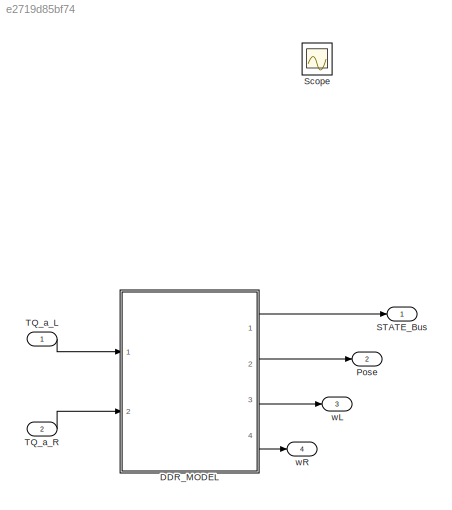
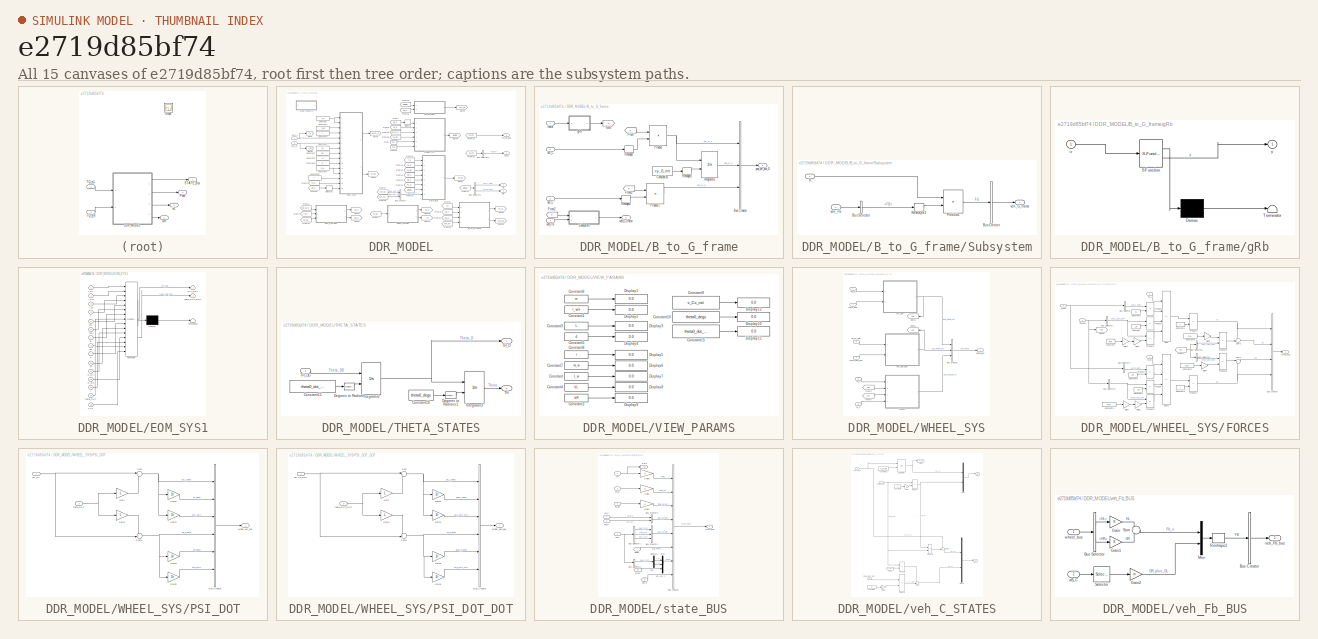
[diagram: thumbnail index - all 15 canvases of the model, root first then tree order]
MODEL slx_e2719d85bf74
KIND model
CONFIG AbsTol = auto
CONFIG EnableMultiTasking = on
CONFIG FixedStep = auto
CONFIG MaxStep = auto
CONFIG MinStep = auto
CONFIG RelTol = 1e-5
CONFIG SampleTimeConstraint = Unconstrained
CONFIG SolverName = ode45
CONFIG StartTime = 0.0
CONFIG StopTime = 120
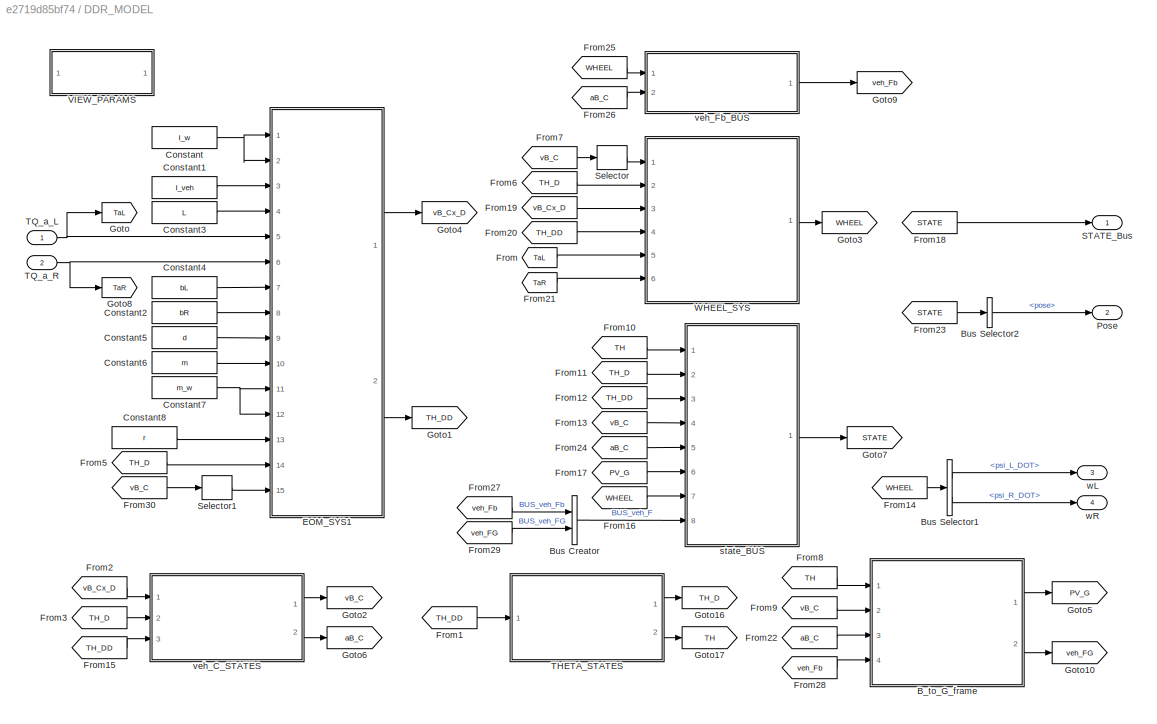
BLOCK [SubSystem] DDR_MODEL
  Ports = [2, 4]
  RequestExecContextInheritance = off
BLOCK [SubSystem] DDR_MODEL/B_to_G_frame
  Ports = [4, 2]
  RequestExecContextInheritance = off
BLOCK [BusCreator] DDR_MODEL/B_to_G_frame/Bus Creator
  DisplayOption = bar
  InheritFromInputs = on
  Inputs = 3
  Ports = [3, 1]
BLOCK [Constant] DDR_MODEL/B_to_G_frame/Constant16
  Value = xy_G_init
BLOCK [From] DDR_MODEL/B_to_G_frame/From
  GotoTag = R
BLOCK [From] DDR_MODEL/B_to_G_frame/From1
  GotoTag = R
BLOCK [From] DDR_MODEL/B_to_G_frame/From2
  GotoTag = R
BLOCK [Goto] DDR_MODEL/B_to_G_frame/Goto
  GotoTag = R
BLOCK [Integrator] DDR_MODEL/B_to_G_frame/Integrator2
  InitialConditionSource = external
  Ports = [2, 1]
BLOCK [Product] DDR_MODEL/B_to_G_frame/Product
  Multiplication = Matrix(*)
  Ports = [2, 1]
BLOCK [Product] DDR_MODEL/B_to_G_frame/Product1
  Multiplication = Matrix(*)
  Ports = [2, 1]
BLOCK [Reshape] DDR_MODEL/B_to_G_frame/Reshape
  Ports = [1, 1]
BLOCK [Reshape] DDR_MODEL/B_to_G_frame/Reshape1
  Ports = [1, 1]
BLOCK [Reshape] DDR_MODEL/B_to_G_frame/Reshape2
  Ports = [1, 1]
BLOCK [SubSystem] DDR_MODEL/B_to_G_frame/Subsystem
  Ports = [2, 1]
  RequestExecContextInheritance = off
BLOCK [BusCreator] DDR_MODEL/B_to_G_frame/Subsystem/Bus Creator
  DisplayOption = bar
  InheritFromInputs = on
  Inputs = 1
  Ports = [1, 1]
BLOCK [BusSelector] DDR_MODEL/B_to_G_frame/Subsystem/Bus Selector
  OutputSignals = FB
  Ports = [1, 1]
BLOCK [Product] DDR_MODEL/B_to_G_frame/Subsystem/Product1
  Multiplication = Matrix(*)
  Ports = [2, 1]
BLOCK [Inport] DDR_MODEL/B_to_G_frame/Subsystem/R
BLOCK [Reshape] DDR_MODEL/B_to_G_frame/Subsystem/Reshape2
  Ports = [1, 1]
BLOCK [Inport] DDR_MODEL/B_to_G_frame/Subsystem/veh_Fb
  Port = 2
BLOCK [Outport] DDR_MODEL/B_to_G_frame/Subsystem/veh_G_frame
BLOCK [Inport] DDR_MODEL/B_to_G_frame/aB_C
  NameLocation = top
  Port = 3
BLOCK [SubSystem] DDR_MODEL/B_to_G_frame/gRb
  ErrorFcn = Stateflow.Translate.translate
  PermitHierarchicalResolution = ExplicitOnly
  Ports = [1, 1]
  RequestExecContextInheritance = off
  SFBlockType = MATLAB Function
  TreatAsAtomicUnit = on
BLOCK [Demux] DDR_MODEL/B_to_G_frame/gRb/ Demux 
  Outputs = 1
  Ports = [1, 1]
BLOCK [S-Function] DDR_MODEL/B_to_G_frame/gRb/ SFunction 
  EnableBusSupport = on
  FunctionName = sf_sfun
  PortCounts = [1 2]
  Ports = [1, 2]
  SFcnIsStateOwnerBlock = off
  SFunctionDeploymentMode = off
  Tag = Stateflow S-Function 4
BLOCK [Terminator] DDR_MODEL/B_to_G_frame/gRb/ Terminator 
BLOCK [Inport] DDR_MODEL/B_to_G_frame/gRb/u
BLOCK [Outport] DDR_MODEL/B_to_G_frame/gRb/y
BLOCK [Outport] DDR_MODEL/B_to_G_frame/pos_vel_acc_G
  NameLocation = top
BLOCK [Inport] DDR_MODEL/B_to_G_frame/theta
BLOCK [Inport] DDR_MODEL/B_to_G_frame/vB_C
  NameLocation = top
  Port = 2
BLOCK [Inport] DDR_MODEL/B_to_G_frame/veh_Fb
  Port = 4
BLOCK [Outport] DDR_MODEL/B_to_G_frame/veh_G_frame
  Port = 2
BLOCK [BusCreator] DDR_MODEL/Bus Creator
  DisplayOption = bar
  InheritFromInputs = on
  Inputs = 2
  Ports = [2, 1]
BLOCK [BusSelector] DDR_MODEL/Bus Selector1
  OutputSignals = BUS_wheel_vel.psi_L_DOT,BUS_wheel_vel.psi_R_DOT
  Ports = [1, 2]
BLOCK [BusSelector] DDR_MODEL/Bus Selector2
  OutputSignals = pose
  Ports = [1, 1]
BLOCK [Constant] DDR_MODEL/Constant
  Value = I_w
BLOCK [Constant] DDR_MODEL/Constant1
  Value = I_veh
BLOCK [Constant] DDR_MODEL/Constant2
  Value = bR
BLOCK [Constant] DDR_MODEL/Constant3
  Value = L
BLOCK [Constant] DDR_MODEL/Constant4
  Value = bL
BLOCK [Constant] DDR_MODEL/Constant5
  Value = d
BLOCK [Constant] DDR_MODEL/Constant6
  Value = m
BLOCK [Constant] DDR_MODEL/Constant7
  Value = m_w
BLOCK [Constant] DDR_MODEL/Constant8
  Value = r
BLOCK [SubSystem] DDR_MODEL/EOM_SYS1
  ErrorFcn = Stateflow.Translate.translate
  PermitHierarchicalResolution = ExplicitOnly
  Ports = [15, 2]
  RequestExecContextInheritance = off
  SFBlockType = MATLAB Function
  TreatAsAtomicUnit = on
BLOCK [Demux] DDR_MODEL/EOM_SYS1/ Demux 
  Outputs = 1
  Ports = [1, 1]
BLOCK [S-Function] DDR_MODEL/EOM_SYS1/ SFunction 
  EnableBusSupport = on
  FunctionName = sf_sfun
  PortCounts = [15 3]
  Ports = [15, 3]
  SFcnIsStateOwnerBlock = off
  SFunctionDeploymentMode = off
  Tag = Stateflow S-Function 2
BLOCK [Terminator] DDR_MODEL/EOM_SYS1/ Terminator 
BLOCK [Inport] DDR_MODEL/EOM_SYS1/I_wL
BLOCK [Inport] DDR_MODEL/EOM_SYS1/I_wR
  Port = 2
BLOCK [Inport] DDR_MODEL/EOM_SYS1/I_zz
  Port = 3
BLOCK [Inport] DDR_MODEL/EOM_SYS1/L
  Port = 4
BLOCK [Inport] DDR_MODEL/EOM_SYS1/TaL
  Port = 5
BLOCK [Inport] DDR_MODEL/EOM_SYS1/TaR
  Port = 6
BLOCK [Inport] DDR_MODEL/EOM_SYS1/bL
  Port = 7
BLOCK [Inport] DDR_MODEL/EOM_SYS1/bR
  Port = 8
BLOCK [Inport] DDR_MODEL/EOM_SYS1/d
  Port = 9
BLOCK [Inport] DDR_MODEL/EOM_SYS1/m
  Port = 10
BLOCK [Inport] DDR_MODEL/EOM_SYS1/m_wL
  Port = 11
BLOCK [Inport] DDR_MODEL/EOM_SYS1/m_wR
  Port = 12
BLOCK [Inport] DDR_MODEL/EOM_SYS1/r
  Port = 13
BLOCK [Inport] DDR_MODEL/EOM_SYS1/theta_DOT
  Port = 14
BLOCK [Outport] DDR_MODEL/EOM_SYS1/theta_DOT_DOT
  Port = 2
BLOCK [Outport] DDR_MODEL/EOM_SYS1/vCx_DOT
BLOCK [Inport] DDR_MODEL/EOM_SYS1/v_Cx
  Port = 15
BLOCK [From] DDR_MODEL/From
  GotoTag = TaL
BLOCK [From] DDR_MODEL/From1
  GotoTag = TH_DD
BLOCK [From] DDR_MODEL/From10
  GotoTag = TH
BLOCK [From] DDR_MODEL/From11
  GotoTag = TH_D
BLOCK [From] DDR_MODEL/From12
  GotoTag = TH_DD
BLOCK [From] DDR_MODEL/From13
  GotoTag = vB_C
BLOCK [From] DDR_MODEL/From14
  GotoTag = WHEEL
BLOCK [From] DDR_MODEL/From15
  GotoTag = TH_DD
BLOCK [From] DDR_MODEL/From16
  GotoTag = WHEEL
BLOCK [From] DDR_MODEL/From17
  GotoTag = PV_G
BLOCK [From] DDR_MODEL/From18
  GotoTag = STATE
BLOCK [From] DDR_MODEL/From19
  GotoTag = vB_Cx_D
BLOCK [From] DDR_MODEL/From2
  GotoTag = vB_Cx_D
BLOCK [From] DDR_MODEL/From20
  GotoTag = TH_DD
BLOCK [From] DDR_MODEL/From21
  GotoTag = TaR
BLOCK [From] DDR_MODEL/From22
  GotoTag = aB_C
BLOCK [From] DDR_MODEL/From23
  GotoTag = STATE
BLOCK [From] DDR_MODEL/From24
  GotoTag = aB_C
BLOCK [From] DDR_MODEL/From25
  GotoTag = WHEEL
BLOCK [From] DDR_MODEL/From26
  GotoTag = aB_C
BLOCK [From] DDR_MODEL/From27
  GotoTag = veh_Fb
BLOCK [From] DDR_MODEL/From28
  GotoTag = veh_Fb
BLOCK [From] DDR_MODEL/From29
  GotoTag = veh_FG
BLOCK [From] DDR_MODEL/From3
  GotoTag = TH_D
BLOCK [From] DDR_MODEL/From30
  GotoTag = vB_C
BLOCK [From] DDR_MODEL/From5
  GotoTag = TH_D
BLOCK [From] DDR_MODEL/From6
  GotoTag = TH_D
BLOCK [From] DDR_MODEL/From7
  GotoTag = vB_C
BLOCK [From] DDR_MODEL/From8
  GotoTag = TH
BLOCK [From] DDR_MODEL/From9
  GotoTag = vB_C
BLOCK [Goto] DDR_MODEL/Goto
  GotoTag = TaL
BLOCK [Goto] DDR_MODEL/Goto1
  GotoTag = TH_DD
BLOCK [Goto] DDR_MODEL/Goto10
  GotoTag = veh_FG
BLOCK [Goto] DDR_MODEL/Goto16
  GotoTag = TH_D
BLOCK [Goto] DDR_MODEL/Goto17
  GotoTag = TH
BLOCK [Goto] DDR_MODEL/Goto2
  GotoTag = vB_C
BLOCK [Goto] DDR_MODEL/Goto3
  GotoTag = WHEEL
BLOCK [Goto] DDR_MODEL/Goto4
  GotoTag = vB_Cx_D
BLOCK [Goto] DDR_MODEL/Goto5
  GotoTag = PV_G
BLOCK [Goto] DDR_MODEL/Goto6
  GotoTag = aB_C
BLOCK [Goto] DDR_MODEL/Goto7
  GotoTag = STATE
BLOCK [Goto] DDR_MODEL/Goto8
  GotoTag = TaR
BLOCK [Goto] DDR_MODEL/Goto9
  GotoTag = veh_Fb
BLOCK [Outport] DDR_MODEL/Pose
  Port = 2
BLOCK [Outport] DDR_MODEL/STATE_Bus
BLOCK [Selector] DDR_MODEL/Selector
  IndexOptions = Index vector (dialog)
  Indices = 1
  InputPortWidth = 2
  OutputSizes = 1
  Ports = [1, 1]
BLOCK [Selector] DDR_MODEL/Selector1
  IndexOptions = Index vector (dialog)
  Indices = 1
  InputPortWidth = 2
  OutputSizes = 1
  Ports = [1, 1]
BLOCK [SubSystem] DDR_MODEL/THETA_STATES
  Ports = [1, 2]
  RequestExecContextInheritance = off
BLOCK [Constant] DDR_MODEL/THETA_STATES/Constant15
  Value = theta0_dot_degs_per_sec
BLOCK [Constant] DDR_MODEL/THETA_STATES/Constant16
  Value = theta0_degs
BLOCK [Reference] DDR_MODEL/THETA_STATES/Degrees to Radians  REF=simulink_extras/Transformations/Degrees to
Radians
  Ports = [1, 1]
  SourceBlock = simulink_extras/Transformations/Degrees to\nRadians
  SourceProductBaseCode = SL
  SourceType = DegreesToRadians
BLOCK [Reference] DDR_MODEL/THETA_STATES/Degrees to Radians1  REF=simulink_extras/Transformations/Degrees to
Radians
  Ports = [1, 1]
  SourceBlock = simulink_extras/Transformations/Degrees to\nRadians
  SourceProductBaseCode = SL
  SourceType = DegreesToRadians
BLOCK [Integrator] DDR_MODEL/THETA_STATES/Integrator2
  InitialConditionSource = external
  Ports = [2, 1]
BLOCK [Integrator] DDR_MODEL/THETA_STATES/Integrator3
  InitialConditionSource = external
  Ports = [2, 1]
BLOCK [Outport] DDR_MODEL/THETA_STATES/TH
  Port = 2
BLOCK [Outport] DDR_MODEL/THETA_STATES/TH_D
BLOCK [Inport] DDR_MODEL/THETA_STATES/TH_DD
  NameLocation = top
BLOCK [Inport] DDR_MODEL/TQ_a_L
  NameLocation = top
BLOCK [Inport] DDR_MODEL/TQ_a_R
  Port = 2
BLOCK [SubSystem] DDR_MODEL/VIEW_PARAMS
  Ports = []
  RequestExecContextInheritance = off
BLOCK [Constant] DDR_MODEL/VIEW_PARAMS/Constant
  Value = I_w
BLOCK [Constant] DDR_MODEL/VIEW_PARAMS/Constant1
  Value = I_veh
BLOCK [Constant] DDR_MODEL/VIEW_PARAMS/Constant15
  Value = theta0_dot_degs_per_sec
BLOCK [Constant] DDR_MODEL/VIEW_PARAMS/Constant16
  Value = theta0_degs
BLOCK [Constant] DDR_MODEL/VIEW_PARAMS/Constant2
  Value = bR
BLOCK [Constant] DDR_MODEL/VIEW_PARAMS/Constant3
  Value = L
BLOCK [Constant] DDR_MODEL/VIEW_PARAMS/Constant4
  Value = bL
BLOCK [Constant] DDR_MODEL/VIEW_PARAMS/Constant5
  Value = d
BLOCK [Constant] DDR_MODEL/VIEW_PARAMS/Constant6
  Value = m
BLOCK [Constant] DDR_MODEL/VIEW_PARAMS/Constant7
  Value = m_w
BLOCK [Constant] DDR_MODEL/VIEW_PARAMS/Constant8
  Value = r
BLOCK [Constant] DDR_MODEL/VIEW_PARAMS/Constant9
  Value = v_Cx_init
BLOCK [Display] DDR_MODEL/VIEW_PARAMS/Display1
  Decimation = 1
  Ports = [1]
BLOCK [Display] DDR_MODEL/VIEW_PARAMS/Display10
  Decimation = 1
  Ports = [1]
BLOCK [Display] DDR_MODEL/VIEW_PARAMS/Display11
  Decimation = 1
  Ports = [1]
BLOCK [Display] DDR_MODEL/VIEW_PARAMS/Display12
  Decimation = 1
  Ports = [1]
BLOCK [Display] DDR_MODEL/VIEW_PARAMS/Display2
  Decimation = 1
  Ports = [1]
BLOCK [Display] DDR_MODEL/VIEW_PARAMS/Display3
  Decimation = 1
  Ports = [1]
BLOCK [Display] DDR_MODEL/VIEW_PARAMS/Display4
  Decimation = 1
  Ports = [1]
BLOCK [Display] DDR_MODEL/VIEW_PARAMS/Display5
  Decimation = 1
  Ports = [1]
BLOCK [Display] DDR_MODEL/VIEW_PARAMS/Display6
  Decimation = 1
  Ports = [1]
BLOCK [Display] DDR_MODEL/VIEW_PARAMS/Display7
  Decimation = 1
  Ports = [1]
BLOCK [Display] DDR_MODEL/VIEW_PARAMS/Display8
  Decimation = 1
  Ports = [1]
BLOCK [Display] DDR_MODEL/VIEW_PARAMS/Display9
  Decimation = 1
  Ports = [1]
BLOCK [SubSystem] DDR_MODEL/WHEEL_SYS
  Ports = [6, 1]
  RequestExecContextInheritance = off
BLOCK [BusCreator] DDR_MODEL/WHEEL_SYS/Bus Creator
  DisplayOption = bar
  InheritFromInputs = on
  Inputs = 3
  Ports = [3, 1]
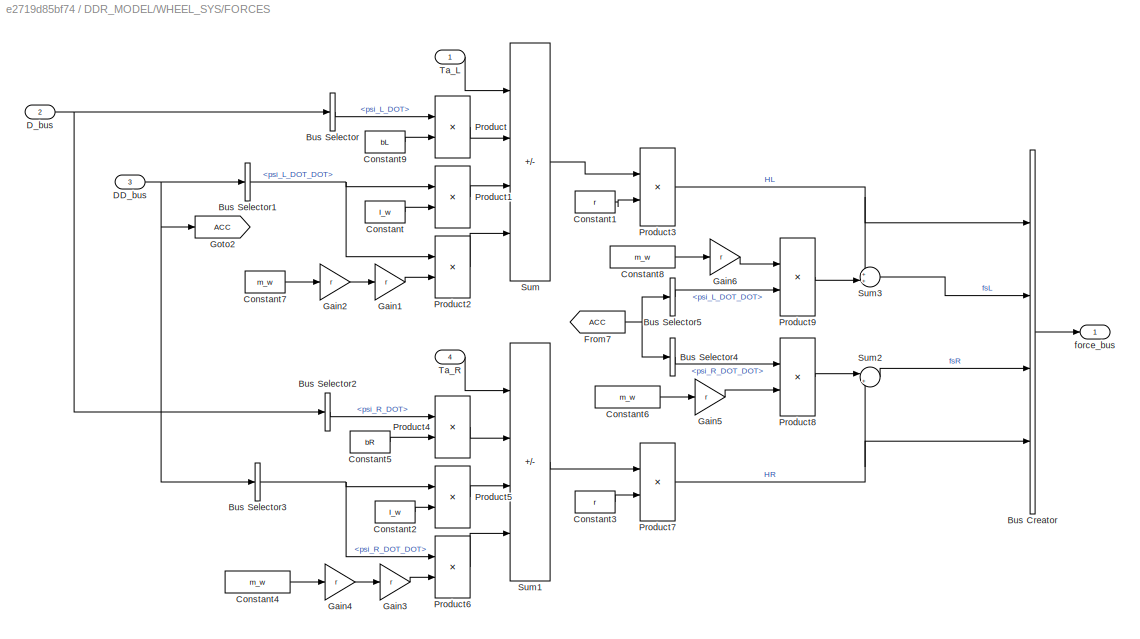
BLOCK [SubSystem] DDR_MODEL/WHEEL_SYS/FORCES
  Ports = [4, 1]
  RequestExecContextInheritance = off
BLOCK [BusCreator] DDR_MODEL/WHEEL_SYS/FORCES/Bus Creator
  DisplayOption = bar
  InheritFromInputs = on
  Inputs = 4
  Ports = [4, 1]
BLOCK [BusSelector] DDR_MODEL/WHEEL_SYS/FORCES/Bus Selector
  OutputSignals = psi_L_DOT
  Ports = [1, 1]
BLOCK [BusSelector] DDR_MODEL/WHEEL_SYS/FORCES/Bus Selector1
  OutputSignals = psi_L_DOT_DOT
  Ports = [1, 1]
BLOCK [BusSelector] DDR_MODEL/WHEEL_SYS/FORCES/Bus Selector2
  OutputSignals = psi_R_DOT
  Ports = [1, 1]
BLOCK [BusSelector] DDR_MODEL/WHEEL_SYS/FORCES/Bus Selector3
  OutputSignals = psi_R_DOT_DOT
  Ports = [1, 1]
BLOCK [BusSelector] DDR_MODEL/WHEEL_SYS/FORCES/Bus Selector4
  OutputSignals = psi_R_DOT_DOT
  Ports = [1, 1]
BLOCK [BusSelector] DDR_MODEL/WHEEL_SYS/FORCES/Bus Selector5
  OutputSignals = psi_L_DOT_DOT
  Ports = [1, 1]
BLOCK [Constant] DDR_MODEL/WHEEL_SYS/FORCES/Constant
  Value = I_w
BLOCK [Constant] DDR_MODEL/WHEEL_SYS/FORCES/Constant1
  Value = r
BLOCK [Constant] DDR_MODEL/WHEEL_SYS/FORCES/Constant2
  Value = I_w
BLOCK [Constant] DDR_MODEL/WHEEL_SYS/FORCES/Constant3
  Value = r
BLOCK [Constant] DDR_MODEL/WHEEL_SYS/FORCES/Constant4
  Value = m_w
BLOCK [Constant] DDR_MODEL/WHEEL_SYS/FORCES/Constant5
  Value = bR
BLOCK [Constant] DDR_MODEL/WHEEL_SYS/FORCES/Constant6
  Value = m_w
BLOCK [Constant] DDR_MODEL/WHEEL_SYS/FORCES/Constant7
  Value = m_w
BLOCK [Constant] DDR_MODEL/WHEEL_SYS/FORCES/Constant8
  Value = m_w
BLOCK [Constant] DDR_MODEL/WHEEL_SYS/FORCES/Constant9
  Value = bL
BLOCK [Inport] DDR_MODEL/WHEEL_SYS/FORCES/DD_bus
  Port = 3
BLOCK [Inport] DDR_MODEL/WHEEL_SYS/FORCES/D_bus
  Port = 2
BLOCK [From] DDR_MODEL/WHEEL_SYS/FORCES/From7
  GotoTag = ACC
BLOCK [Gain] DDR_MODEL/WHEEL_SYS/FORCES/Gain1
  Gain = r
BLOCK [Gain] DDR_MODEL/WHEEL_SYS/FORCES/Gain2
  Gain = r
BLOCK [Gain] DDR_MODEL/WHEEL_SYS/FORCES/Gain3
  Gain = r
BLOCK [Gain] DDR_MODEL/WHEEL_SYS/FORCES/Gain4
  Gain = r
BLOCK [Gain] DDR_MODEL/WHEEL_SYS/FORCES/Gain5
  Gain = r
BLOCK [Gain] DDR_MODEL/WHEEL_SYS/FORCES/Gain6
  Gain = r
BLOCK [Goto] DDR_MODEL/WHEEL_SYS/FORCES/Goto2
  GotoTag = ACC
BLOCK [Product] DDR_MODEL/WHEEL_SYS/FORCES/Product
  Ports = [2, 1]
BLOCK [Product] DDR_MODEL/WHEEL_SYS/FORCES/Product1
  Ports = [2, 1]
BLOCK [Product] DDR_MODEL/WHEEL_SYS/FORCES/Product2
  Ports = [2, 1]
BLOCK [Product] DDR_MODEL/WHEEL_SYS/FORCES/Product3
  Inputs = */
  Ports = [2, 1]
BLOCK [Product] DDR_MODEL/WHEEL_SYS/FORCES/Product4
  Ports = [2, 1]
BLOCK [Product] DDR_MODEL/WHEEL_SYS/FORCES/Product5
  Ports = [2, 1]
BLOCK [Product] DDR_MODEL/WHEEL_SYS/FORCES/Product6
  Ports = [2, 1]
BLOCK [Product] DDR_MODEL/WHEEL_SYS/FORCES/Product7
  Inputs = */
  Ports = [2, 1]
BLOCK [Product] DDR_MODEL/WHEEL_SYS/FORCES/Product8
  Ports = [2, 1]
BLOCK [Product] DDR_MODEL/WHEEL_SYS/FORCES/Product9
  Ports = [2, 1]
BLOCK [Sum] DDR_MODEL/WHEEL_SYS/FORCES/Sum
  IconShape = rectangular
  Inputs = +|-|-|-
  Ports = [4, 1]
BLOCK [Sum] DDR_MODEL/WHEEL_SYS/FORCES/Sum1
  IconShape = rectangular
  Inputs = +|-|-|-
  Ports = [4, 1]
BLOCK [Sum] DDR_MODEL/WHEEL_SYS/FORCES/Sum2
  Inputs = |++
  Ports = [2, 1]
BLOCK [Sum] DDR_MODEL/WHEEL_SYS/FORCES/Sum3
  Inputs = ++|
  Ports = [2, 1]
BLOCK [Inport] DDR_MODEL/WHEEL_SYS/FORCES/Ta_L
  NameLocation = top
BLOCK [Inport] DDR_MODEL/WHEEL_SYS/FORCES/Ta_R
  NameLocation = top
  Port = 4
BLOCK [Outport] DDR_MODEL/WHEEL_SYS/FORCES/force_bus
BLOCK [From] DDR_MODEL/WHEEL_SYS/From3
  GotoTag = VEL
BLOCK [From] DDR_MODEL/WHEEL_SYS/From7
  GotoTag = ACC
BLOCK [Goto] DDR_MODEL/WHEEL_SYS/Goto1
  GotoTag = VEL
  NameLocation = top
BLOCK [Goto] DDR_MODEL/WHEEL_SYS/Goto2
  GotoTag = ACC
  NameLocation = top
BLOCK [SubSystem] DDR_MODEL/WHEEL_SYS/PSI_DOT
  NameLocation = top
  Ports = [2, 1]
  RequestExecContextInheritance = off
BLOCK [BusCreator] DDR_MODEL/WHEEL_SYS/PSI_DOT/Bus Creator
  DisplayOption = bar
  InheritFromInputs = on
  Inputs = 6
  Ports = [6, 1]
BLOCK [Gain] DDR_MODEL/WHEEL_SYS/PSI_DOT/Gain
  Gain = L
BLOCK [Gain] DDR_MODEL/WHEEL_SYS/PSI_DOT/Gain1
  Gain = L
BLOCK [Gain] DDR_MODEL/WHEEL_SYS/PSI_DOT/Gain2
  Gain = 1/r
BLOCK [Gain] DDR_MODEL/WHEEL_SYS/PSI_DOT/Gain3
  Gain = 1/r
BLOCK [Gain] DDR_MODEL/WHEEL_SYS/PSI_DOT/Gain4
  Gain = 1/r
BLOCK [Gain] DDR_MODEL/WHEEL_SYS/PSI_DOT/Gain5
  Gain = 1/r
BLOCK [Sum] DDR_MODEL/WHEEL_SYS/PSI_DOT/Sum
  Inputs = |+-
  Ports = [2, 1]
BLOCK [Sum] DDR_MODEL/WHEEL_SYS/PSI_DOT/Sum1
  Inputs = ++|
  Ports = [2, 1]
BLOCK [Inport] DDR_MODEL/WHEEL_SYS/PSI_DOT/theta_DOT
  Port = 2
BLOCK [Inport] DDR_MODEL/WHEEL_SYS/PSI_DOT/vB_Cx
BLOCK [Outport] DDR_MODEL/WHEEL_SYS/PSI_DOT/wheel_vel_bus
BLOCK [SubSystem] DDR_MODEL/WHEEL_SYS/PSI_DOT_DOT
  Ports = [2, 1]
  RequestExecContextInheritance = off
BLOCK [BusCreator] DDR_MODEL/WHEEL_SYS/PSI_DOT_DOT/Bus Creator
  DisplayOption = bar
  InheritFromInputs = on
  Inputs = 6
  Ports = [6, 1]
BLOCK [Gain] DDR_MODEL/WHEEL_SYS/PSI_DOT_DOT/Gain
  Gain = L
BLOCK [Gain] DDR_MODEL/WHEEL_SYS/PSI_DOT_DOT/Gain1
  Gain = L
BLOCK [Gain] DDR_MODEL/WHEEL_SYS/PSI_DOT_DOT/Gain2
  Gain = 1/r
BLOCK [Gain] DDR_MODEL/WHEEL_SYS/PSI_DOT_DOT/Gain3
  Gain = 1/r
BLOCK [Gain] DDR_MODEL/WHEEL_SYS/PSI_DOT_DOT/Gain4
  Gain = 1/r
BLOCK [Gain] DDR_MODEL/WHEEL_SYS/PSI_DOT_DOT/Gain5
  Gain = 1/r
BLOCK [Sum] DDR_MODEL/WHEEL_SYS/PSI_DOT_DOT/Sum
  Inputs = |+-
  Ports = [2, 1]
BLOCK [Sum] DDR_MODEL/WHEEL_SYS/PSI_DOT_DOT/Sum1
  Inputs = ++|
  Ports = [2, 1]
BLOCK [Inport] DDR_MODEL/WHEEL_SYS/PSI_DOT_DOT/theta_DOT_DOT
  Port = 2
BLOCK [Inport] DDR_MODEL/WHEEL_SYS/PSI_DOT_DOT/vB_Cx_DOT
BLOCK [Outport] DDR_MODEL/WHEEL_SYS/PSI_DOT_DOT/wheel_acc_bus
BLOCK [Inport] DDR_MODEL/WHEEL_SYS/Ta_L
  NameLocation = top
  Port = 5
BLOCK [Inport] DDR_MODEL/WHEEL_SYS/Ta_R
  Port = 6
BLOCK [Inport] DDR_MODEL/WHEEL_SYS/theta_DOT
  Port = 2
BLOCK [Inport] DDR_MODEL/WHEEL_SYS/theta_DOT_DOT
  Port = 4
BLOCK [Inport] DDR_MODEL/WHEEL_SYS/vB_Cx
BLOCK [Inport] DDR_MODEL/WHEEL_SYS/vB_Cx_DOT
  Port = 3
BLOCK [Outport] DDR_MODEL/WHEEL_SYS/wheel_bus
BLOCK [SubSystem] DDR_MODEL/state_BUS
  Ports = [8, 1]
  RequestExecContextInheritance = off
BLOCK [BusCreator] DDR_MODEL/state_BUS/Bus Creator
  DisplayOption = bar
  InheritFromInputs = on
  Inputs = 8
  Ports = [8, 1]
BLOCK [BusCreator] DDR_MODEL/state_BUS/Bus Creator1
  DisplayOption = bar
  InheritFromInputs = on
  Inputs = 3
  Ports = [3, 1]
BLOCK [BusCreator] DDR_MODEL/state_BUS/Bus Creator2
  DisplayOption = bar
  InheritFromInputs = on
  Inputs = 2
  Ports = [2, 1]
BLOCK [BusSelector] DDR_MODEL/state_BUS/Bus Selector1
  OutputSignals = pos_G_C,vel_G_C,acc_G_C
  Ports = [1, 3]
BLOCK [BusSelector] DDR_MODEL/state_BUS/Bus Selector2
  OutputSignals = pos_G_C
  Ports = [1, 1]
BLOCK [Demux] DDR_MODEL/state_BUS/Demux1
  Outputs = 2
  Ports = [1, 2]
BLOCK [From] DDR_MODEL/state_BUS/From
  GotoTag = TH
BLOCK [Gain] DDR_MODEL/state_BUS/Gain1
BLOCK [Gain] DDR_MODEL/state_BUS/Gain2
BLOCK [Gain] DDR_MODEL/state_BUS/Gain6
BLOCK [Goto] DDR_MODEL/state_BUS/Goto
  GotoTag = TH
BLOCK [Mux] DDR_MODEL/state_BUS/Mux
  DisplayOption = bar
  Inputs = 3
  Ports = [3, 1]
BLOCK [Inport] DDR_MODEL/state_BUS/PVG
  Port = 6
BLOCK [Inport] DDR_MODEL/state_BUS/TH
BLOCK [Inport] DDR_MODEL/state_BUS/TH_D
  Port = 2
BLOCK [Inport] DDR_MODEL/state_BUS/TH_DD
  Port = 3
BLOCK [Inport] DDR_MODEL/state_BUS/aB_C
  Port = 5
BLOCK [Outport] DDR_MODEL/state_BUS/state_bus
BLOCK [Inport] DDR_MODEL/state_BUS/vB_C
  NameLocation = top
  Port = 4
BLOCK [Inport] DDR_MODEL/state_BUS/veh_F
  Port = 8
BLOCK [Inport] DDR_MODEL/state_BUS/wheel
  Port = 7
BLOCK [SubSystem] DDR_MODEL/veh_C_STATES
  Ports = [3, 2]
  RequestExecContextInheritance = off
BLOCK [Constant] DDR_MODEL/veh_C_STATES/Constant1
  Value = d
BLOCK [Constant] DDR_MODEL/veh_C_STATES/Constant16
  Value = v_Cx_init
BLOCK [Constant] DDR_MODEL/veh_C_STATES/Constant9
  Value = d
BLOCK [From] DDR_MODEL/veh_C_STATES/From
  GotoTag = v_Cx
BLOCK [Gain] DDR_MODEL/veh_C_STATES/Gain
  Gain = -1
BLOCK [Gain] DDR_MODEL/veh_C_STATES/Gain1
  Gain = -1
BLOCK [Goto] DDR_MODEL/veh_C_STATES/Goto
  GotoTag = v_Cx
BLOCK [Integrator] DDR_MODEL/veh_C_STATES/Integrator2
  InitialConditionSource = external
  Ports = [2, 1]
BLOCK [Mux] DDR_MODEL/veh_C_STATES/Mux
  DisplayOption = bar
  Inputs = 2
  Ports = [2, 1]
BLOCK [Mux] DDR_MODEL/veh_C_STATES/Mux1
  DisplayOption = bar
  Inputs = 2
  Ports = [2, 1]
BLOCK [Product] DDR_MODEL/veh_C_STATES/Product
  Ports = [2, 1]
BLOCK [Product] DDR_MODEL/veh_C_STATES/Product1
  Ports = [2, 1]
BLOCK [Product] DDR_MODEL/veh_C_STATES/Product2
  Ports = [2, 1]
BLOCK [Product] DDR_MODEL/veh_C_STATES/Product3
  Ports = [2, 1]
BLOCK [Sum] DDR_MODEL/veh_C_STATES/Sum1
  Inputs = ++|
  Ports = [2, 1]
BLOCK [Sum] DDR_MODEL/veh_C_STATES/Sum2
  Inputs = +-|
  Ports = [2, 1]
BLOCK [Outport] DDR_MODEL/veh_C_STATES/aB_C
  Port = 2
BLOCK [Inport] DDR_MODEL/veh_C_STATES/theta_DOT
  NameLocation = top
  Port = 2
BLOCK [Inport] DDR_MODEL/veh_C_STATES/theta_DOT_DOT
  NameLocation = top
  Port = 3
BLOCK [Outport] DDR_MODEL/veh_C_STATES/vB_C
BLOCK [Inport] DDR_MODEL/veh_C_STATES/vB_Cx_D
BLOCK [SubSystem] DDR_MODEL/veh_Fb_BUS
  Ports = [2, 1]
  RequestExecContextInheritance = off
BLOCK [BusCreator] DDR_MODEL/veh_Fb_BUS/Bus Creator
  DisplayOption = bar
  InheritFromInputs = on
  Inputs = 1
  Ports = [1, 1]
BLOCK [BusSelector] DDR_MODEL/veh_Fb_BUS/Bus Selector
  OutputSignals = BUS_wheel_force.HL,BUS_wheel_force.HR
  Ports = [1, 2]
BLOCK [Gain] DDR_MODEL/veh_Fb_BUS/Gain
BLOCK [Gain] DDR_MODEL/veh_Fb_BUS/Gain1
BLOCK [Gain] DDR_MODEL/veh_Fb_BUS/Gain2
  Gain = m
BLOCK [Mux] DDR_MODEL/veh_Fb_BUS/Mux
  DisplayOption = bar
  Inputs = 2
  Ports = [2, 1]
BLOCK [Reshape] DDR_MODEL/veh_Fb_BUS/Reshape2
  Ports = [1, 1]
BLOCK [Selector] DDR_MODEL/veh_Fb_BUS/Selector
  IndexOptions = Index vector (dialog)
  Indices = 2
  InputPortWidth = 2
  OutputSizes = 1
  Ports = [1, 1]
BLOCK [Sum] DDR_MODEL/veh_Fb_BUS/Sum
  Inputs = +|+
  Ports = [2, 1]
BLOCK [Inport] DDR_MODEL/veh_Fb_BUS/aB_C
  Port = 2
BLOCK [Outport] DDR_MODEL/veh_Fb_BUS/veh_Fb_bus
BLOCK [Inport] DDR_MODEL/veh_Fb_BUS/wheel_bus
BLOCK [Outport] DDR_MODEL/wL
  NameLocation = top
  Port = 3
BLOCK [Outport] DDR_MODEL/wR
  Port = 4
BLOCK [Outport] Pose
  NameLocation = top
  Port = 2
BLOCK [Outport] STATE_Bus
  NameLocation = top
  OutDataTypeStr = Bus: BUS_DDR_state
BLOCK [Scope] Scope
  Floating = off
  IOType = viewer
  NumInputPorts = 1
  Ports = []
  ScopeSpecificationString = Simulink.scopes.TimeScopeBlockCfg('CurrentConfiguration', extmgr.ConfigurationSet(extmgr.Configuration('Core','General UI',true),extmgr.Configuration('Core','Source UI',true),extmgr.Configuration('Sources','WiredSimulink',true,'DataLoggingVariableName','ScopeData1'),extmgr.Configuration('Visuals','Time Domain',true,'SerializedDisplays',{struct('MinYLimReal','0.07','MaxYLimReal','0.09','YLabelReal'...<+1983ch>
BLOCK [Inport] TQ_a_L
  NameLocation = top
BLOCK [Inport] TQ_a_R
  Port = 2
BLOCK [Outport] wL
  NameLocation = top
  Port = 3
BLOCK [Outport] wR
  NameLocation = top
  Port = 4
ANNOTATION DDR_MODEL/state_BUS: state_BUS
LINE DDR_MODEL/B_to_G_frame/Bus Creator:1 -> DDR_MODEL/B_to_G_frame/pos_vel_acc_G:1
LINE DDR_MODEL/B_to_G_frame/Constant16:1 -> DDR_MODEL/B_to_G_frame/Reshape1:1
LINE DDR_MODEL/B_to_G_frame/From1:1 -> DDR_MODEL/B_to_G_frame/Product1:1
LINE DDR_MODEL/B_to_G_frame/From2:1 -> DDR_MODEL/B_to_G_frame/Subsystem:1
LINE DDR_MODEL/B_to_G_frame/From:1 -> DDR_MODEL/B_to_G_frame/Product:1
LINE DDR_MODEL/B_to_G_frame/Integrator2:1 -> DDR_MODEL/B_to_G_frame/Bus Creator:2
LINE DDR_MODEL/B_to_G_frame/Product1:1 -> DDR_MODEL/B_to_G_frame/Bus Creator:3
NET DDR_MODEL/B_to_G_frame/Product:1 -> DDR_MODEL/B_to_G_frame/Bus Creator:1, DDR_MODEL/B_to_G_frame/Integrator2:1
LINE DDR_MODEL/B_to_G_frame/Reshape1:1 -> DDR_MODEL/B_to_G_frame/Integrator2:2
LINE DDR_MODEL/B_to_G_frame/Reshape2:1 -> DDR_MODEL/B_to_G_frame/Product1:2
LINE DDR_MODEL/B_to_G_frame/Reshape:1 -> DDR_MODEL/B_to_G_frame/Product:2
LINE DDR_MODEL/B_to_G_frame/Subsystem/Bus Creator:1 -> DDR_MODEL/B_to_G_frame/Subsystem/veh_G_frame:1
LINE DDR_MODEL/B_to_G_frame/Subsystem/Bus Selector:1 -> DDR_MODEL/B_to_G_frame/Subsystem/Reshape2:1
LINE DDR_MODEL/B_to_G_frame/Subsystem/Product1:1 -> DDR_MODEL/B_to_G_frame/Subsystem/Bus Creator:1
LINE DDR_MODEL/B_to_G_frame/Subsystem/R:1 -> DDR_MODEL/B_to_G_frame/Subsystem/Product1:1
LINE DDR_MODEL/B_to_G_frame/Subsystem/Reshape2:1 -> DDR_MODEL/B_to_G_frame/Subsystem/Product1:2
LINE DDR_MODEL/B_to_G_frame/Subsystem/veh_Fb:1 -> DDR_MODEL/B_to_G_frame/Subsystem/Bus Selector:1
LINE DDR_MODEL/B_to_G_frame/Subsystem:1 -> DDR_MODEL/B_to_G_frame/veh_G_frame:1
LINE DDR_MODEL/B_to_G_frame/aB_C:1 -> DDR_MODEL/B_to_G_frame/Reshape2:1
LINE DDR_MODEL/B_to_G_frame/gRb:1 -> DDR_MODEL/B_to_G_frame/Goto:1
LINE DDR_MODEL/B_to_G_frame/theta:1 -> DDR_MODEL/B_to_G_frame/gRb:1
LINE DDR_MODEL/B_to_G_frame/vB_C:1 -> DDR_MODEL/B_to_G_frame/Reshape:1
LINE DDR_MODEL/B_to_G_frame/veh_Fb:1 -> DDR_MODEL/B_to_G_frame/Subsystem:2
LINE DDR_MODEL/B_to_G_frame:1 -> DDR_MODEL/Goto5:1
LINE DDR_MODEL/B_to_G_frame:2 -> DDR_MODEL/Goto10:1
LINE DDR_MODEL/Bus Creator:1 -> DDR_MODEL/state_BUS:8
LINE DDR_MODEL/Bus Selector1:1 -> DDR_MODEL/wL:1
LINE DDR_MODEL/Bus Selector1:2 -> DDR_MODEL/wR:1
LINE DDR_MODEL/Bus Selector2:1 -> DDR_MODEL/Pose:1
LINE DDR_MODEL/Constant1:1 -> DDR_MODEL/EOM_SYS1:3
LINE DDR_MODEL/Constant2:1 -> DDR_MODEL/EOM_SYS1:8
LINE DDR_MODEL/Constant3:1 -> DDR_MODEL/EOM_SYS1:4
LINE DDR_MODEL/Constant4:1 -> DDR_MODEL/EOM_SYS1:7
LINE DDR_MODEL/Constant5:1 -> DDR_MODEL/EOM_SYS1:9
LINE DDR_MODEL/Constant6:1 -> DDR_MODEL/EOM_SYS1:10
NET DDR_MODEL/Constant7:1 -> DDR_MODEL/EOM_SYS1:11, DDR_MODEL/EOM_SYS1:12
LINE DDR_MODEL/Constant8:1 -> DDR_MODEL/EOM_SYS1:13
NET DDR_MODEL/Constant:1 -> DDR_MODEL/EOM_SYS1:1, DDR_MODEL/EOM_SYS1:2
LINE DDR_MODEL/EOM_SYS1:1 -> DDR_MODEL/Goto4:1
LINE DDR_MODEL/EOM_SYS1:2 -> DDR_MODEL/Goto1:1
LINE DDR_MODEL/From10:1 -> DDR_MODEL/state_BUS:1
LINE DDR_MODEL/From11:1 -> DDR_MODEL/state_BUS:2
LINE DDR_MODEL/From12:1 -> DDR_MODEL/state_BUS:3
LINE DDR_MODEL/From13:1 -> DDR_MODEL/state_BUS:4
LINE DDR_MODEL/From14:1 -> DDR_MODEL/Bus Selector1:1
LINE DDR_MODEL/From15:1 -> DDR_MODEL/veh_C_STATES:3
LINE DDR_MODEL/From16:1 -> DDR_MODEL/state_BUS:7
LINE DDR_MODEL/From17:1 -> DDR_MODEL/state_BUS:6
LINE DDR_MODEL/From18:1 -> DDR_MODEL/STATE_Bus:1
LINE DDR_MODEL/From19:1 -> DDR_MODEL/WHEEL_SYS:3
LINE DDR_MODEL/From1:1 -> DDR_MODEL/THETA_STATES:1
LINE DDR_MODEL/From20:1 -> DDR_MODEL/WHEEL_SYS:4
LINE DDR_MODEL/From21:1 -> DDR_MODEL/WHEEL_SYS:6
LINE DDR_MODEL/From22:1 -> DDR_MODEL/B_to_G_frame:3
LINE DDR_MODEL/From23:1 -> DDR_MODEL/Bus Selector2:1
LINE DDR_MODEL/From24:1 -> DDR_MODEL/state_BUS:5
LINE DDR_MODEL/From25:1 -> DDR_MODEL/veh_Fb_BUS:1
LINE DDR_MODEL/From26:1 -> DDR_MODEL/veh_Fb_BUS:2
LINE DDR_MODEL/From27:1 -> DDR_MODEL/Bus Creator:1
LINE DDR_MODEL/From28:1 -> DDR_MODEL/B_to_G_frame:4
LINE DDR_MODEL/From29:1 -> DDR_MODEL/Bus Creator:2
LINE DDR_MODEL/From2:1 -> DDR_MODEL/veh_C_STATES:1
LINE DDR_MODEL/From30:1 -> DDR_MODEL/Selector1:1
LINE DDR_MODEL/From3:1 -> DDR_MODEL/veh_C_STATES:2
LINE DDR_MODEL/From5:1 -> DDR_MODEL/EOM_SYS1:14
LINE DDR_MODEL/From6:1 -> DDR_MODEL/WHEEL_SYS:2
LINE DDR_MODEL/From7:1 -> DDR_MODEL/Selector:1
LINE DDR_MODEL/From8:1 -> DDR_MODEL/B_to_G_frame:1
LINE DDR_MODEL/From9:1 -> DDR_MODEL/B_to_G_frame:2
LINE DDR_MODEL/From:1 -> DDR_MODEL/WHEEL_SYS:5
LINE DDR_MODEL/Selector1:1 -> DDR_MODEL/EOM_SYS1:15
LINE DDR_MODEL/Selector:1 -> DDR_MODEL/WHEEL_SYS:1
LINE DDR_MODEL/THETA_STATES/Constant15:1 -> DDR_MODEL/THETA_STATES/Degrees to Radians:1
LINE DDR_MODEL/THETA_STATES/Constant16:1 -> DDR_MODEL/THETA_STATES/Degrees to Radians1:1
LINE DDR_MODEL/THETA_STATES/Degrees to Radians1:1 -> DDR_MODEL/THETA_STATES/Integrator3:2
LINE DDR_MODEL/THETA_STATES/Degrees to Radians:1 -> DDR_MODEL/THETA_STATES/Integrator2:2
NET DDR_MODEL/THETA_STATES/Integrator2:1 -> DDR_MODEL/THETA_STATES/Integrator3:1, DDR_MODEL/THETA_STATES/TH_D:1
LINE DDR_MODEL/THETA_STATES/Integrator3:1 -> DDR_MODEL/THETA_STATES/TH:1
LINE DDR_MODEL/THETA_STATES/TH_DD:1 -> DDR_MODEL/THETA_STATES/Integrator2:1
LINE DDR_MODEL/THETA_STATES:1 -> DDR_MODEL/Goto16:1
LINE DDR_MODEL/THETA_STATES:2 -> DDR_MODEL/Goto17:1
NET DDR_MODEL/TQ_a_L:1 -> DDR_MODEL/EOM_SYS1:5, DDR_MODEL/Goto:1
NET DDR_MODEL/TQ_a_R:1 -> DDR_MODEL/EOM_SYS1:6, DDR_MODEL/Goto8:1
LINE DDR_MODEL/VIEW_PARAMS/Constant15:1 -> DDR_MODEL/VIEW_PARAMS/Display11:1
LINE DDR_MODEL/VIEW_PARAMS/Constant16:1 -> DDR_MODEL/VIEW_PARAMS/Display10:1
LINE DDR_MODEL/VIEW_PARAMS/Constant1:1 -> DDR_MODEL/VIEW_PARAMS/Display2:1
LINE DDR_MODEL/VIEW_PARAMS/Constant2:1 -> DDR_MODEL/VIEW_PARAMS/Display9:1
LINE DDR_MODEL/VIEW_PARAMS/Constant3:1 -> DDR_MODEL/VIEW_PARAMS/Display3:1
LINE DDR_MODEL/VIEW_PARAMS/Constant4:1 -> DDR_MODEL/VIEW_PARAMS/Display8:1
LINE DDR_MODEL/VIEW_PARAMS/Constant5:1 -> DDR_MODEL/VIEW_PARAMS/Display4:1
LINE DDR_MODEL/VIEW_PARAMS/Constant6:1 -> DDR_MODEL/VIEW_PARAMS/Display1:1
LINE DDR_MODEL/VIEW_PARAMS/Constant7:1 -> DDR_MODEL/VIEW_PARAMS/Display6:1
LINE DDR_MODEL/VIEW_PARAMS/Constant8:1 -> DDR_MODEL/VIEW_PARAMS/Display5:1
LINE DDR_MODEL/VIEW_PARAMS/Constant9:1 -> DDR_MODEL/VIEW_PARAMS/Display12:1
LINE DDR_MODEL/VIEW_PARAMS/Constant:1 -> DDR_MODEL/VIEW_PARAMS/Display7:1
LINE DDR_MODEL/WHEEL_SYS/Bus Creator:1 -> DDR_MODEL/WHEEL_SYS/wheel_bus:1
LINE DDR_MODEL/WHEEL_SYS/FORCES/Bus Creator:1 -> DDR_MODEL/WHEEL_SYS/FORCES/force_bus:1
NET DDR_MODEL/WHEEL_SYS/FORCES/Bus Selector1:1 -> DDR_MODEL/WHEEL_SYS/FORCES/Product1:1, DDR_MODEL/WHEEL_SYS/FORCES/Product2:1
LINE DDR_MODEL/WHEEL_SYS/FORCES/Bus Selector2:1 -> DDR_MODEL/WHEEL_SYS/FORCES/Product4:1
NET DDR_MODEL/WHEEL_SYS/FORCES/Bus Selector3:1 -> DDR_MODEL/WHEEL_SYS/FORCES/Product5:1, DDR_MODEL/WHEEL_SYS/FORCES/Product6:1
LINE DDR_MODEL/WHEEL_SYS/FORCES/Bus Selector4:1 -> DDR_MODEL/WHEEL_SYS/FORCES/Product8:1
LINE DDR_MODEL/WHEEL_SYS/FORCES/Bus Selector5:1 -> DDR_MODEL/WHEEL_SYS/FORCES/Product9:2
LINE DDR_MODEL/WHEEL_SYS/FORCES/Bus Selector:1 -> DDR_MODEL/WHEEL_SYS/FORCES/Product:1
LINE DDR_MODEL/WHEEL_SYS/FORCES/Constant1:1 -> DDR_MODEL/WHEEL_SYS/FORCES/Product3:2
LINE DDR_MODEL/WHEEL_SYS/FORCES/Constant2:1 -> DDR_MODEL/WHEEL_SYS/FORCES/Product5:2
LINE DDR_MODEL/WHEEL_SYS/FORCES/Constant3:1 -> DDR_MODEL/WHEEL_SYS/FORCES/Product7:2
LINE DDR_MODEL/WHEEL_SYS/FORCES/Constant4:1 -> DDR_MODEL/WHEEL_SYS/FORCES/Gain4:1
LINE DDR_MODEL/WHEEL_SYS/FORCES/Constant5:1 -> DDR_MODEL/WHEEL_SYS/FORCES/Product4:2
LINE DDR_MODEL/WHEEL_SYS/FORCES/Constant6:1 -> DDR_MODEL/WHEEL_SYS/FORCES/Gain5:1
LINE DDR_MODEL/WHEEL_SYS/FORCES/Constant7:1 -> DDR_MODEL/WHEEL_SYS/FORCES/Gain2:1
LINE DDR_MODEL/WHEEL_SYS/FORCES/Constant8:1 -> DDR_MODEL/WHEEL_SYS/FORCES/Gain6:1
LINE DDR_MODEL/WHEEL_SYS/FORCES/Constant9:1 -> DDR_MODEL/WHEEL_SYS/FORCES/Product:2
LINE DDR_MODEL/WHEEL_SYS/FORCES/Constant:1 -> DDR_MODEL/WHEEL_SYS/FORCES/Product1:2
NET DDR_MODEL/WHEEL_SYS/FORCES/DD_bus:1 -> DDR_MODEL/WHEEL_SYS/FORCES/Bus Selector1:1, DDR_MODEL/WHEEL_SYS/FORCES/Bus Selector3:1, DDR_MODEL/WHEEL_SYS/FORCES/Goto2:1
NET DDR_MODEL/WHEEL_SYS/FORCES/D_bus:1 -> DDR_MODEL/WHEEL_SYS/FORCES/Bus Selector2:1, DDR_MODEL/WHEEL_SYS/FORCES/Bus Selector:1
NET DDR_MODEL/WHEEL_SYS/FORCES/From7:1 -> DDR_MODEL/WHEEL_SYS/FORCES/Bus Selector4:1, DDR_MODEL/WHEEL_SYS/FORCES/Bus Selector5:1
LINE DDR_MODEL/WHEEL_SYS/FORCES/Gain1:1 -> DDR_MODEL/WHEEL_SYS/FORCES/Product2:2
LINE DDR_MODEL/WHEEL_SYS/FORCES/Gain2:1 -> DDR_MODEL/WHEEL_SYS/FORCES/Gain1:1
LINE DDR_MODEL/WHEEL_SYS/FORCES/Gain3:1 -> DDR_MODEL/WHEEL_SYS/FORCES/Product6:2
LINE DDR_MODEL/WHEEL_SYS/FORCES/Gain4:1 -> DDR_MODEL/WHEEL_SYS/FORCES/Gain3:1
LINE DDR_MODEL/WHEEL_SYS/FORCES/Gain5:1 -> DDR_MODEL/WHEEL_SYS/FORCES/Product8:2
LINE DDR_MODEL/WHEEL_SYS/FORCES/Gain6:1 -> DDR_MODEL/WHEEL_SYS/FORCES/Product9:1
LINE DDR_MODEL/WHEEL_SYS/FORCES/Product1:1 -> DDR_MODEL/WHEEL_SYS/FORCES/Sum:3
LINE DDR_MODEL/WHEEL_SYS/FORCES/Product2:1 -> DDR_MODEL/WHEEL_SYS/FORCES/Sum:4
NET DDR_MODEL/WHEEL_SYS/FORCES/Product3:1 -> DDR_MODEL/WHEEL_SYS/FORCES/Bus Creator:1, DDR_MODEL/WHEEL_SYS/FORCES/Sum3:1
LINE DDR_MODEL/WHEEL_SYS/FORCES/Product4:1 -> DDR_MODEL/WHEEL_SYS/FORCES/Sum1:2
LINE DDR_MODEL/WHEEL_SYS/FORCES/Product5:1 -> DDR_MODEL/WHEEL_SYS/FORCES/Sum1:3
LINE DDR_MODEL/WHEEL_SYS/FORCES/Product6:1 -> DDR_MODEL/WHEEL_SYS/FORCES/Sum1:4
NET DDR_MODEL/WHEEL_SYS/FORCES/Product7:1 -> DDR_MODEL/WHEEL_SYS/FORCES/Bus Creator:4, DDR_MODEL/WHEEL_SYS/FORCES/Sum2:2
LINE DDR_MODEL/WHEEL_SYS/FORCES/Product8:1 -> DDR_MODEL/WHEEL_SYS/FORCES/Sum2:1
LINE DDR_MODEL/WHEEL_SYS/FORCES/Product9:1 -> DDR_MODEL/WHEEL_SYS/FORCES/Sum3:2
LINE DDR_MODEL/WHEEL_SYS/FORCES/Product:1 -> DDR_MODEL/WHEEL_SYS/FORCES/Sum:2
LINE DDR_MODEL/WHEEL_SYS/FORCES/Sum1:1 -> DDR_MODEL/WHEEL_SYS/FORCES/Product7:1
LINE DDR_MODEL/WHEEL_SYS/FORCES/Sum2:1 -> DDR_MODEL/WHEEL_SYS/FORCES/Bus Creator:3
LINE DDR_MODEL/WHEEL_SYS/FORCES/Sum3:1 -> DDR_MODEL/WHEEL_SYS/FORCES/Bus Creator:2
LINE DDR_MODEL/WHEEL_SYS/FORCES/Sum:1 -> DDR_MODEL/WHEEL_SYS/FORCES/Product3:1
LINE DDR_MODEL/WHEEL_SYS/FORCES/Ta_L:1 -> DDR_MODEL/WHEEL_SYS/FORCES/Sum:1
LINE DDR_MODEL/WHEEL_SYS/FORCES/Ta_R:1 -> DDR_MODEL/WHEEL_SYS/FORCES/Sum1:1
LINE DDR_MODEL/WHEEL_SYS/FORCES:1 -> DDR_MODEL/WHEEL_SYS/Bus Creator:3
LINE DDR_MODEL/WHEEL_SYS/From3:1 -> DDR_MODEL/WHEEL_SYS/FORCES:2
LINE DDR_MODEL/WHEEL_SYS/From7:1 -> DDR_MODEL/WHEEL_SYS/FORCES:3
LINE DDR_MODEL/WHEEL_SYS/PSI_DOT/Bus Creator:1 -> DDR_MODEL/WHEEL_SYS/PSI_DOT/wheel_vel_bus:1
LINE DDR_MODEL/WHEEL_SYS/PSI_DOT/Gain1:1 -> DDR_MODEL/WHEEL_SYS/PSI_DOT/Sum1:1
LINE DDR_MODEL/WHEEL_SYS/PSI_DOT/Gain2:1 -> DDR_MODEL/WHEEL_SYS/PSI_DOT/Bus Creator:2
LINE DDR_MODEL/WHEEL_SYS/PSI_DOT/Gain3:1 -> DDR_MODEL/WHEEL_SYS/PSI_DOT/Bus Creator:5
LINE DDR_MODEL/WHEEL_SYS/PSI_DOT/Gain4:1 -> DDR_MODEL/WHEEL_SYS/PSI_DOT/Bus Creator:3
LINE DDR_MODEL/WHEEL_SYS/PSI_DOT/Gain5:1 -> DDR_MODEL/WHEEL_SYS/PSI_DOT/Bus Creator:6
LINE DDR_MODEL/WHEEL_SYS/PSI_DOT/Gain:1 -> DDR_MODEL/WHEEL_SYS/PSI_DOT/Sum:2
NET DDR_MODEL/WHEEL_SYS/PSI_DOT/Sum1:1 -> DDR_MODEL/WHEEL_SYS/PSI_DOT/Bus Creator:4, DDR_MODEL/WHEEL_SYS/PSI_DOT/Gain3:1, DDR_MODEL/WHEEL_SYS/PSI_DOT/Gain5:1
NET DDR_MODEL/WHEEL_SYS/PSI_DOT/Sum:1 -> DDR_MODEL/WHEEL_SYS/PSI_DOT/Bus Creator:1, DDR_MODEL/WHEEL_SYS/PSI_DOT/Gain2:1, DDR_MODEL/WHEEL_SYS/PSI_DOT/Gain4:1
NET DDR_MODEL/WHEEL_SYS/PSI_DOT/theta_DOT:1 -> DDR_MODEL/WHEEL_SYS/PSI_DOT/Gain1:1, DDR_MODEL/WHEEL_SYS/PSI_DOT/Gain:1
NET DDR_MODEL/WHEEL_SYS/PSI_DOT/vB_Cx:1 -> DDR_MODEL/WHEEL_SYS/PSI_DOT/Sum1:2, DDR_MODEL/WHEEL_SYS/PSI_DOT/Sum:1
NET DDR_MODEL/WHEEL_SYS/PSI_DOT:1 -> DDR_MODEL/WHEEL_SYS/Bus Creator:1, DDR_MODEL/WHEEL_SYS/Goto1:1
LINE DDR_MODEL/WHEEL_SYS/PSI_DOT_DOT/Bus Creator:1 -> DDR_MODEL/WHEEL_SYS/PSI_DOT_DOT/wheel_acc_bus:1
LINE DDR_MODEL/WHEEL_SYS/PSI_DOT_DOT/Gain1:1 -> DDR_MODEL/WHEEL_SYS/PSI_DOT_DOT/Sum1:1
LINE DDR_MODEL/WHEEL_SYS/PSI_DOT_DOT/Gain2:1 -> DDR_MODEL/WHEEL_SYS/PSI_DOT_DOT/Bus Creator:2
LINE DDR_MODEL/WHEEL_SYS/PSI_DOT_DOT/Gain3:1 -> DDR_MODEL/WHEEL_SYS/PSI_DOT_DOT/Bus Creator:5
LINE DDR_MODEL/WHEEL_SYS/PSI_DOT_DOT/Gain4:1 -> DDR_MODEL/WHEEL_SYS/PSI_DOT_DOT/Bus Creator:3
LINE DDR_MODEL/WHEEL_SYS/PSI_DOT_DOT/Gain5:1 -> DDR_MODEL/WHEEL_SYS/PSI_DOT_DOT/Bus Creator:6
LINE DDR_MODEL/WHEEL_SYS/PSI_DOT_DOT/Gain:1 -> DDR_MODEL/WHEEL_SYS/PSI_DOT_DOT/Sum:2
NET DDR_MODEL/WHEEL_SYS/PSI_DOT_DOT/Sum1:1 -> DDR_MODEL/WHEEL_SYS/PSI_DOT_DOT/Bus Creator:4, DDR_MODEL/WHEEL_SYS/PSI_DOT_DOT/Gain3:1, DDR_MODEL/WHEEL_SYS/PSI_DOT_DOT/Gain5:1
NET DDR_MODEL/WHEEL_SYS/PSI_DOT_DOT/Sum:1 -> DDR_MODEL/WHEEL_SYS/PSI_DOT_DOT/Bus Creator:1, DDR_MODEL/WHEEL_SYS/PSI_DOT_DOT/Gain2:1, DDR_MODEL/WHEEL_SYS/PSI_DOT_DOT/Gain4:1
NET DDR_MODEL/WHEEL_SYS/PSI_DOT_DOT/theta_DOT_DOT:1 -> DDR_MODEL/WHEEL_SYS/PSI_DOT_DOT/Gain1:1, DDR_MODEL/WHEEL_SYS/PSI_DOT_DOT/Gain:1
NET DDR_MODEL/WHEEL_SYS/PSI_DOT_DOT/vB_Cx_DOT:1 -> DDR_MODEL/WHEEL_SYS/PSI_DOT_DOT/Sum1:2, DDR_MODEL/WHEEL_SYS/PSI_DOT_DOT/Sum:1
NET DDR_MODEL/WHEEL_SYS/PSI_DOT_DOT:1 -> DDR_MODEL/WHEEL_SYS/Bus Creator:2, DDR_MODEL/WHEEL_SYS/Goto2:1
LINE DDR_MODEL/WHEEL_SYS/Ta_L:1 -> DDR_MODEL/WHEEL_SYS/FORCES:1
LINE DDR_MODEL/WHEEL_SYS/Ta_R:1 -> DDR_MODEL/WHEEL_SYS/FORCES:4
LINE DDR_MODEL/WHEEL_SYS/theta_DOT:1 -> DDR_MODEL/WHEEL_SYS/PSI_DOT:2
LINE DDR_MODEL/WHEEL_SYS/theta_DOT_DOT:1 -> DDR_MODEL/WHEEL_SYS/PSI_DOT_DOT:2
LINE DDR_MODEL/WHEEL_SYS/vB_Cx:1 -> DDR_MODEL/WHEEL_SYS/PSI_DOT:1
LINE DDR_MODEL/WHEEL_SYS/vB_Cx_DOT:1 -> DDR_MODEL/WHEEL_SYS/PSI_DOT_DOT:1
LINE DDR_MODEL/WHEEL_SYS:1 -> DDR_MODEL/Goto3:1
LINE DDR_MODEL/state_BUS/Bus Creator1:1 -> DDR_MODEL/state_BUS/Bus Creator:5
LINE DDR_MODEL/state_BUS/Bus Creator2:1 -> DDR_MODEL/state_BUS/Bus Creator:4
LINE DDR_MODEL/state_BUS/Bus Creator:1 -> DDR_MODEL/state_BUS/state_bus:1
LINE DDR_MODEL/state_BUS/Bus Selector1:1 -> DDR_MODEL/state_BUS/Bus Creator1:1
LINE DDR_MODEL/state_BUS/Bus Selector1:2 -> DDR_MODEL/state_BUS/Bus Creator1:2
LINE DDR_MODEL/state_BUS/Bus Selector1:3 -> DDR_MODEL/state_BUS/Bus Creator1:3
LINE DDR_MODEL/state_BUS/Bus Selector2:1 -> DDR_MODEL/state_BUS/Demux1:1
LINE DDR_MODEL/state_BUS/Demux1:1 -> DDR_MODEL/state_BUS/Mux:1
LINE DDR_MODEL/state_BUS/Demux1:2 -> DDR_MODEL/state_BUS/Mux:2
LINE DDR_MODEL/state_BUS/From:1 -> DDR_MODEL/state_BUS/Mux:3
LINE DDR_MODEL/state_BUS/Gain1:1 -> DDR_MODEL/state_BUS/Bus Creator:2
LINE DDR_MODEL/state_BUS/Gain2:1 -> DDR_MODEL/state_BUS/Bus Creator:3
LINE DDR_MODEL/state_BUS/Gain6:1 -> DDR_MODEL/state_BUS/Bus Creator:1
LINE DDR_MODEL/state_BUS/Mux:1 -> DDR_MODEL/state_BUS/Bus Creator:7
NET DDR_MODEL/state_BUS/PVG:1 -> DDR_MODEL/state_BUS/Bus Selector1:1, DDR_MODEL/state_BUS/Bus Selector2:1
NET DDR_MODEL/state_BUS/TH:1 -> DDR_MODEL/state_BUS/Gain6:1, DDR_MODEL/state_BUS/Goto:1
LINE DDR_MODEL/state_BUS/TH_D:1 -> DDR_MODEL/state_BUS/Gain1:1
LINE DDR_MODEL/state_BUS/TH_DD:1 -> DDR_MODEL/state_BUS/Gain2:1
LINE DDR_MODEL/state_BUS/aB_C:1 -> DDR_MODEL/state_BUS/Bus Creator2:2
LINE DDR_MODEL/state_BUS/vB_C:1 -> DDR_MODEL/state_BUS/Bus Creator2:1
LINE DDR_MODEL/state_BUS/veh_F:1 -> DDR_MODEL/state_BUS/Bus Creator:8
LINE DDR_MODEL/state_BUS/wheel:1 -> DDR_MODEL/state_BUS/Bus Creator:6
LINE DDR_MODEL/state_BUS:1 -> DDR_MODEL/Goto7:1
LINE DDR_MODEL/veh_C_STATES/Constant16:1 -> DDR_MODEL/veh_C_STATES/Integrator2:2
LINE DDR_MODEL/veh_C_STATES/Constant1:1 -> DDR_MODEL/veh_C_STATES/Gain1:1
LINE DDR_MODEL/veh_C_STATES/Constant9:1 -> DDR_MODEL/veh_C_STATES/Gain:1
LINE DDR_MODEL/veh_C_STATES/From:1 -> DDR_MODEL/veh_C_STATES/Product3:2
LINE DDR_MODEL/veh_C_STATES/Gain1:1 -> DDR_MODEL/veh_C_STATES/Product1:2
LINE DDR_MODEL/veh_C_STATES/Gain:1 -> DDR_MODEL/veh_C_STATES/Product:2
NET DDR_MODEL/veh_C_STATES/Integrator2:1 -> DDR_MODEL/veh_C_STATES/Goto:1, DDR_MODEL/veh_C_STATES/Mux:1
LINE DDR_MODEL/veh_C_STATES/Mux1:1 -> DDR_MODEL/veh_C_STATES/aB_C:1
LINE DDR_MODEL/veh_C_STATES/Mux:1 -> DDR_MODEL/veh_C_STATES/vB_C:1
LINE DDR_MODEL/veh_C_STATES/Product1:1 -> DDR_MODEL/veh_C_STATES/Sum1:2
LINE DDR_MODEL/veh_C_STATES/Product2:1 -> DDR_MODEL/veh_C_STATES/Sum2:2
LINE DDR_MODEL/veh_C_STATES/Product3:1 -> DDR_MODEL/veh_C_STATES/Sum1:1
NET DDR_MODEL/veh_C_STATES/Product:1 -> DDR_MODEL/veh_C_STATES/Mux:2, DDR_MODEL/veh_C_STATES/Product2:1
LINE DDR_MODEL/veh_C_STATES/Sum1:1 -> DDR_MODEL/veh_C_STATES/Mux1:2
LINE DDR_MODEL/veh_C_STATES/Sum2:1 -> DDR_MODEL/veh_C_STATES/Mux1:1
NET DDR_MODEL/veh_C_STATES/theta_DOT:1 -> DDR_MODEL/veh_C_STATES/Product2:2, DDR_MODEL/veh_C_STATES/Product3:1, DDR_MODEL/veh_C_STATES/Product:1
LINE DDR_MODEL/veh_C_STATES/theta_DOT_DOT:1 -> DDR_MODEL/veh_C_STATES/Product1:1
NET DDR_MODEL/veh_C_STATES/vB_Cx_D:1 -> DDR_MODEL/veh_C_STATES/Integrator2:1, DDR_MODEL/veh_C_STATES/Sum2:1
LINE DDR_MODEL/veh_C_STATES:1 -> DDR_MODEL/Goto2:1
LINE DDR_MODEL/veh_C_STATES:2 -> DDR_MODEL/Goto6:1
LINE DDR_MODEL/veh_Fb_BUS/Bus Creator:1 -> DDR_MODEL/veh_Fb_BUS/veh_Fb_bus:1
LINE DDR_MODEL/veh_Fb_BUS/Bus Selector:1 -> DDR_MODEL/veh_Fb_BUS/Gain:1
LINE DDR_MODEL/veh_Fb_BUS/Bus Selector:2 -> DDR_MODEL/veh_Fb_BUS/Gain1:1
LINE DDR_MODEL/veh_Fb_BUS/Gain1:1 -> DDR_MODEL/veh_Fb_BUS/Sum:2
LINE DDR_MODEL/veh_Fb_BUS/Gain2:1 -> DDR_MODEL/veh_Fb_BUS/Mux:2
LINE DDR_MODEL/veh_Fb_BUS/Gain:1 -> DDR_MODEL/veh_Fb_BUS/Sum:1
LINE DDR_MODEL/veh_Fb_BUS/Mux:1 -> DDR_MODEL/veh_Fb_BUS/Reshape2:1
LINE DDR_MODEL/veh_Fb_BUS/Reshape2:1 -> DDR_MODEL/veh_Fb_BUS/Bus Creator:1
LINE DDR_MODEL/veh_Fb_BUS/Selector:1 -> DDR_MODEL/veh_Fb_BUS/Gain2:1
LINE DDR_MODEL/veh_Fb_BUS/Sum:1 -> DDR_MODEL/veh_Fb_BUS/Mux:1
LINE DDR_MODEL/veh_Fb_BUS/aB_C:1 -> DDR_MODEL/veh_Fb_BUS/Selector:1
LINE DDR_MODEL/veh_Fb_BUS/wheel_bus:1 -> DDR_MODEL/veh_Fb_BUS/Bus Selector:1
LINE DDR_MODEL/veh_Fb_BUS:1 -> DDR_MODEL/Goto9:1
LINE DDR_MODEL:1 -> STATE_Bus:1
LINE DDR_MODEL:2 -> Pose:1
LINE DDR_MODEL:3 -> wL:1
LINE DDR_MODEL:4 -> wR:1
LINE TQ_a_L:1 -> DDR_MODEL:1
LINE TQ_a_R:1 -> DDR_MODEL:2
note: NET lines group one-source signal fan-out (src -> all destinations, sorted); 1:1 wires keep LINE
CHART DDR_MODEL/EOM_SYS1 states=1 transitions=1
  STATE_LABEL 'eML_blk_kernel()'
  STATE_LABEL 'SCRIPT:\nfunction [vCx_DOT,theta_DOT_DOT] = EOM_SYS(I_wL,I_wR,I_zz,L,TaL,TaR,bL,bR,d,m,m_wL,m_wR,r,theta_DOT,v_Cx)\n%#codegen\n\n%    This function was generated by the Symbolic Math Toolbox version 7.1.\n%    03-Dec-2016 14:01:57\n\nt2 = r.^2;\nt3 = t2.^2;\nt4 = L.^2;\nt5 = d.^2;\nt6 = m.^2;\nt7 = theta_DOT.^2;\nt8 = I_wL.*I_wR.*t4.*4.0;\nt9 = t3.*t5.*t6;\nt10 = I_wL.*I_zz.*t2;\nt11 = I_wR.*I_zz.*t2;\nt12 = I_zz....<+2034ch>'
CHART DDR_MODEL/B_to_G_frame/gRb states=1 transitions=1
  STATE_LABEL 'eML_blk_kernel()'
  STATE_LABEL 'SCRIPT:\nfunction y = fcn(u)\n\ny = [ cos(u), -sin(u);\n      sin(u),  cos(u) ];\n  \nend\n'
CHART  states=0 transitions=0
CHART  states=0 transitions=0
